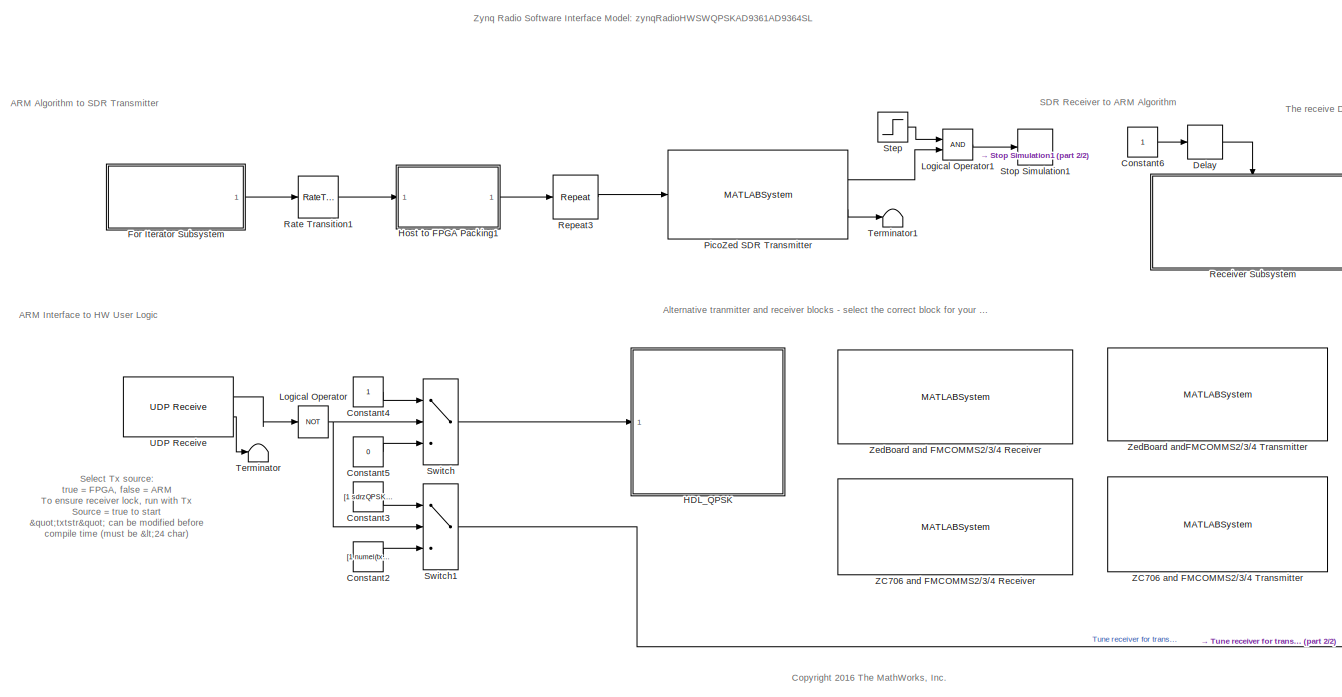
[diagram: root canvas - part 1/2, most of the canvas]
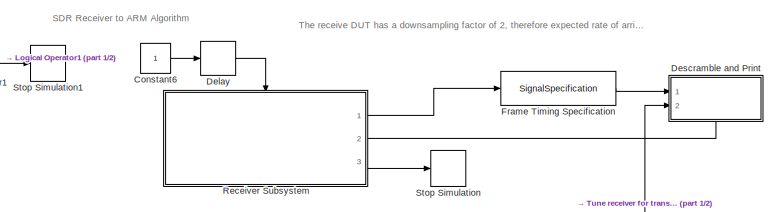
[diagram: root canvas - part 2/2, top right region]
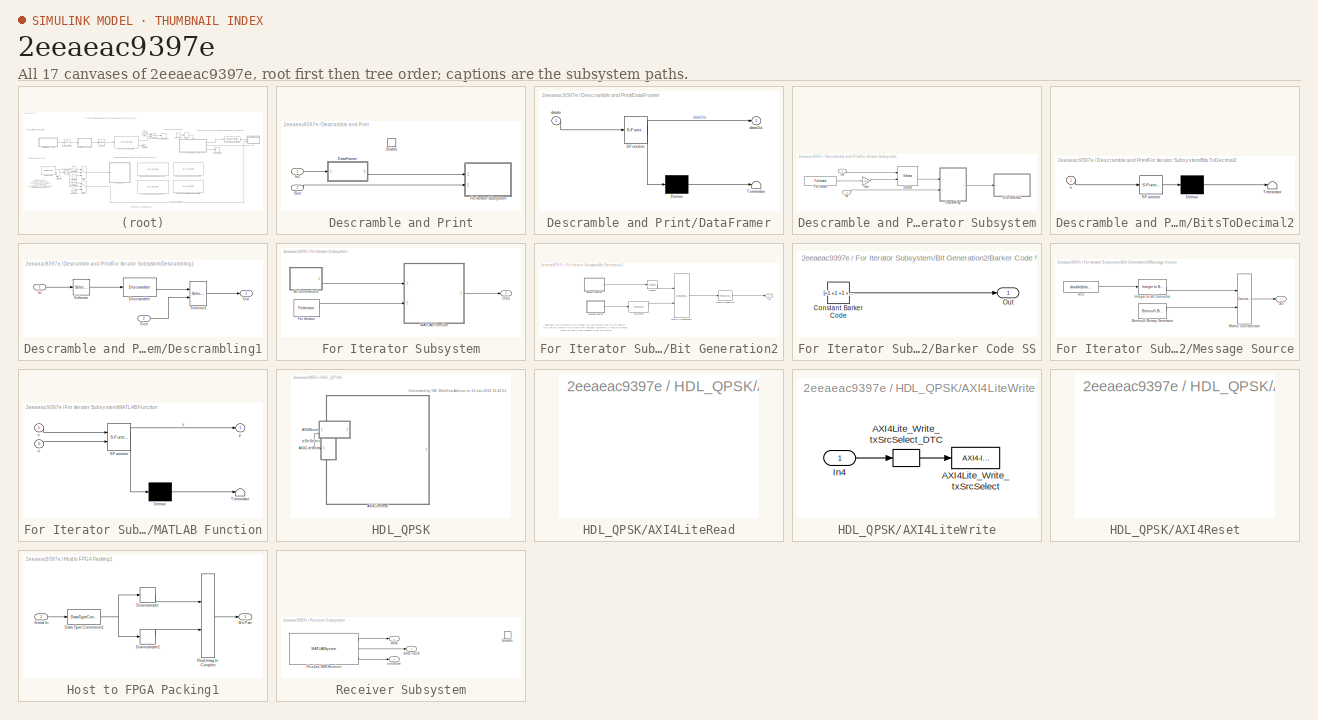
[diagram: thumbnail index - all 17 canvases of the model, root first then tree order]
MODEL slx_2eeaeac9397e
KIND model
CONFIG AbsTol = auto
CONFIG FixedStep = auto
CONFIG InitFcn = sdrzQPSKTxFPGA_params = zynqRadioQPSKTxFPGAAD9361AD9364SL_init;\nsdrzQPSKrxFPGA = zynqRadioQPSKRxFPGAAD9361AD9364SL_init;\n\nif (numel(txtstr) > 24)\n  error('txtstr message must be less than 24 characters');\nend; 
CONFIG MaxStep = auto
CONFIG MinStep = auto
CONFIG PreLoadFcn = % Ensure SDR libraries are added to path\ntempradiodev_ = sdrdev('ZC706 and FMCOMMS2/3/4');\ntempradiodev_.setupSession();\nclear tempradiodev_; % clean up\n\nsdrzQPSKTxFPGA_params = zynqRadioQPSKTxFPGAAD9361AD9364SL_init;\nsdrzQPSKrxFPGA = zynqRadioQPSKRxFPGAAD9361AD9364SL_init;\n\n% ARM Tx message\ntxtstr = '*Zynq HW/SW Co-design*';\n\n% Length of data set for transmit\nDataFrameLength = 10000;
CONFIG RelTol = 1e-3
CONFIG SampleTimeConstraint = Unconstrained
CONFIG Solver = FixedStepDiscrete
CONFIG SolverMode = SingleTasking
CONFIG SolverName = FixedStepDiscrete
CONFIG StartTime = 0.0
CONFIG StopTime = inf
BLOCK [Constant] Constant2
  SampleTime = -1
  Value = [1 numel(txtstr)*7]
BLOCK [Constant] Constant3
  SampleTime = -1
  Value = [1 sdrzQPSKTxFPGA_params.MsgLength]
BLOCK [Constant] Constant4
  OutDataTypeStr = boolean
  SampleTime = -1
BLOCK [Constant] Constant5
  OutDataTypeStr = boolean
  SampleTime = -1
  Value = 0
BLOCK [Constant] Constant6
  SampleTime = 2*(DataFrameLength/2)/sdrzQPSKrxFPGA.Fs
BLOCK [Delay] Delay
  InputPortMap = u0
  Ports = [1, 1]
BLOCK [SubSystem] Descramble and Print
  Ports = [2, 0, 1]
  RequestExecContextInheritance = off
  TreatAsAtomicUnit = on
  Variant = off
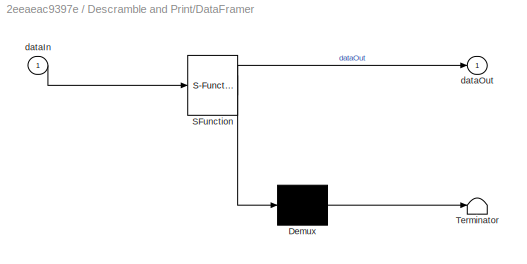
BLOCK [SubSystem] Descramble and Print/DataFramer
  ErrorFcn = Stateflow.Translate.translate
  PermitHierarchicalResolution = ExplicitOnly
  Ports = [1, 1]
  RequestExecContextInheritance = off
  SFBlockType = MATLAB Function
  TreatAsAtomicUnit = on
  Variant = off
BLOCK [Demux] Descramble and Print/DataFramer/ Demux 
  Outputs = 1
  Ports = [1, 1]
BLOCK [S-Function] Descramble and Print/DataFramer/ SFunction 
  EnableBusSupport = on
  FunctionName = sf_sfun
  PortCounts = [1 2]
  Ports = [1, 2]
  SFunctionDeploymentMode = off
  Tag = Stateflow S-Function zynqRadioHWSWQPSKAD9361AD9364SL_UDP_interface 9
BLOCK [Terminator] Descramble and Print/DataFramer/ Terminator 
BLOCK [Inport] Descramble and Print/DataFramer/dataIn
  IconDisplay = Port number
BLOCK [Outport] Descramble and Print/DataFramer/dataOut
  IconDisplay = Port number
BLOCK [EnablePort] Descramble and Print/Enable
  Ports = []
  PropagateVarSize = During execution
BLOCK [SubSystem] Descramble and Print/For Iterator Subsystem
  Ports = [2]
  RequestExecContextInheritance = off
  TreatAsAtomicUnit = on
  Variant = off
BLOCK [SubSystem] Descramble and Print/For Iterator Subsystem/BitsToDecimal2
  ErrorFcn = Stateflow.Translate.translate
  PermitHierarchicalResolution = ExplicitOnly
  Ports = [1]
  RequestExecContextInheritance = off
  SFBlockType = MATLAB Function
  TreatAsAtomicUnit = on
  Variant = off
BLOCK [Demux] Descramble and Print/For Iterator Subsystem/BitsToDecimal2/ Demux 
  Outputs = 1
  Ports = [1, 1]
BLOCK [S-Function] Descramble and Print/For Iterator Subsystem/BitsToDecimal2/ SFunction 
  EnableBusSupport = on
  FunctionName = sf_sfun
  PortCounts = [1 1]
  Ports = [1, 1]
  SFunctionDeploymentMode = off
  Tag = Stateflow S-Function zynqRadioHWSWQPSKAD9361AD9364SL_UDP_interface 2
BLOCK [Terminator] Descramble and Print/For Iterator Subsystem/BitsToDecimal2/ Terminator 
BLOCK [Inport] Descramble and Print/For Iterator Subsystem/BitsToDecimal2/u
  IconDisplay = Port number
BLOCK [SubSystem] Descramble and Print/For Iterator Subsystem/Descrambling1
  Ports = [2, 1]
  RequestExecContextInheritance = off
  Variant = off
BLOCK [Reference] Descramble and Print/For Iterator Subsystem/Descrambling1/Descrambler  REF=commsequence2/Descrambler
  Ports = [1, 1]
  SourceBlock = commsequence2/Descrambler
  SourceType = Descrambler
BLOCK [Inport] Descramble and Print/For Iterator Subsystem/Descrambling1/In
  IconDisplay = Port number
BLOCK [Outport] Descramble and Print/For Iterator Subsystem/Descrambling1/Out
  IconDisplay = Port number
BLOCK [Selector] Descramble and Print/For Iterator Subsystem/Descrambling1/Selector
  IndexOptions = Index vector (dialog)
  Indices = [sdrzQPSKrxFPGA.BarkerLength*log2(sdrzQPSKrxFPGA.M)+1:sdrzQPSKrxFPGA.FrameSize*log2(sdrzQPSKrxFPGA.M)]
  OutputSizes = 1
  Ports = [1, 1]
BLOCK [Selector] Descramble and Print/For Iterator Subsystem/Descrambling1/Selector1
  IndexOptions = Starting and ending indices (port)
  Indices = [1:msglen]
  OutputSizes = 1
  Ports = [2, 1]
BLOCK [Inport] Descramble and Print/For Iterator Subsystem/Descrambling1/Size
  IconDisplay = Port number
  Port = 2
BLOCK [ForIterator] Descramble and Print/For Iterator Subsystem/For Iterator
  IndexMode = Zero-based
  IterationLimit = (DataFrameLength/(sdrzQPSKTxFPGA_params.DataLength + 2*sdrzQPSKTxFPGA_params.BarkerLength))-1
  Ports = [0, 1]
BLOCK [Gain] Descramble and Print/For Iterator Subsystem/Gain
  Gain = sdrzQPSKTxFPGA_params.DataLength + 2*sdrzQPSKTxFPGA_params.BarkerLength
  OutDataTypeStr = int32
  ParamDataTypeStr = Inherit: Inherit via internal rule
  SaturateOnIntegerOverflow = off
BLOCK [Inport] Descramble and Print/For Iterator Subsystem/In1
  IconDisplay = Port number
BLOCK [Inport] Descramble and Print/For Iterator Subsystem/In2
  IconDisplay = Port number
  Port = 2
BLOCK [Selector] Descramble and Print/For Iterator Subsystem/Selector
  IndexMode = Zero-based
  IndexOptions = Starting index (port)
  Indices = [sdrzQPSKrxFPGA.BarkerLength*log2(sdrzQPSKrxFPGA.M)+1:sdrzQPSKrxFPGA.FrameSize*log2(sdrzQPSKrxFPGA.M)]
  OutputSizes = sdrzQPSKTxFPGA_params.DataLength + 2*sdrzQPSKTxFPGA_params.BarkerLength
  Ports = [2, 1]
BLOCK [Inport] Descramble and Print/In1
  IconDisplay = Port number
BLOCK [Inport] Descramble and Print/Size
  IconDisplay = Port number
  Port = 2
BLOCK [SubSystem] For Iterator Subsystem
  Ports = [0, 1]
  RequestExecContextInheritance = off
  TreatAsAtomicUnit = on
  Variant = off
BLOCK [SubSystem] For Iterator Subsystem/Bit Generation2
  Ports = [0, 1]
  RequestExecContextInheritance = off
  Variant = off
BLOCK [SubSystem] For Iterator Subsystem/Bit Generation2/Barker Code SS
  Ports = [0, 1]
  RequestExecContextInheritance = off
  Variant = off
BLOCK [Constant] For Iterator Subsystem/Bit Generation2/Barker Code SS/Constant Barker Code
  OutDataTypeStr = double
  SampleTime = -1
  Value = [+1 +1 +1 +1 +1 -1 -1 +1 +1 -1 +1 -1 +1\n].' > 0  % Bipolar to Unipolar Conversion
  VectorParams1D = off
BLOCK [Outport] For Iterator Subsystem/Bit Generation2/Barker Code SS/Out
  IconDisplay = Port number
BLOCK [FrameConversion] For Iterator Subsystem/Bit Generation2/Frame Conversion
  InheritSamplingMode = off
  OutFrame = Sample-based
  Ports = [1, 1]
BLOCK [Concatenate] For Iterator Subsystem/Bit Generation2/Matrix Concatenate
  Mode = Multidimensional array
  Ports = [2, 1]
BLOCK [SubSystem] For Iterator Subsystem/Bit Generation2/Message Source
  Ports = [0, 1]
  RequestExecContextInheritance = off
  Variant = off
BLOCK [Reference] For Iterator Subsystem/Bit Generation2/Message Source/Bernoulli Binary Generator  REF=commrandsrc2/Bernoulli Binary
Generator
  Ports = [0, 1]
  SourceBlock = commrandsrc2/Bernoulli Binary\nGenerator
  SourceType = Bernoulli Binary Generator
BLOCK [Reference] For Iterator Subsystem/Bit Generation2/Message Source/Integer to Bit Converter  REF=commutil2/Integer to Bit
Converter
  Ports = [1, 1]
  SourceBlock = commutil2/Integer to Bit\nConverter
  SourceType = Integer to Bit Converter
BLOCK [Concatenate] For Iterator Subsystem/Bit Generation2/Message Source/Matrix Concatenate
  Mode = Multidimensional array
  Ports = [2, 1]
BLOCK [Outport] For Iterator Subsystem/Bit Generation2/Message Source/Out
  IconDisplay = Port number
BLOCK [Constant] For Iterator Subsystem/Bit Generation2/Message Source/text
  SampleTime = -1
  Value = double(txtstr)
BLOCK [Outport] For Iterator Subsystem/Bit Generation2/Out
  IconDisplay = Port number
BLOCK [Reference] For Iterator Subsystem/Bit Generation2/Repeat  REF=dspsigops/Repeat
  Ports = [1, 1]
  SourceBlock = dspsigops/Repeat
  SourceType = Repeat
  UserDataPersistent = on
BLOCK [Reference] For Iterator Subsystem/Bit Generation2/Scrambler  REF=commsequence2/Scrambler
  Ports = [1, 1]
  SourceBlock = commsequence2/Scrambler
  SourceType = Scrambler
BLOCK [ForIterator] For Iterator Subsystem/For Iterator
  IndexMode = Zero-based
  IterationLimit = (DataFrameLength/(sdrzQPSKTxFPGA_params.DataLength + 2*sdrzQPSKTxFPGA_params.BarkerLength))-1
  Ports = [0, 1]
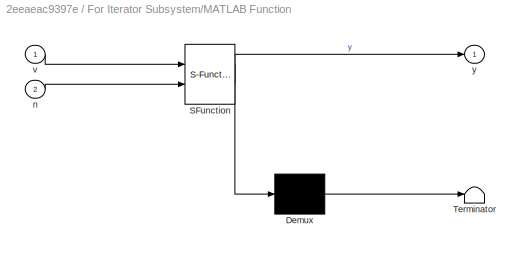
BLOCK [SubSystem] For Iterator Subsystem/MATLAB Function
  ErrorFcn = Stateflow.Translate.translate
  PermitHierarchicalResolution = ExplicitOnly
  Ports = [2, 1]
  RequestExecContextInheritance = off
  SFBlockType = MATLAB Function
  TreatAsAtomicUnit = on
  Variant = off
BLOCK [Demux] For Iterator Subsystem/MATLAB Function/ Demux 
  Outputs = 1
  Ports = [1, 1]
BLOCK [S-Function] For Iterator Subsystem/MATLAB Function/ SFunction 
  EnableBusSupport = on
  FunctionName = sf_sfun
  PortCounts = [2 2]
  Ports = [2, 2]
  SFunctionDeploymentMode = off
  Tag = Stateflow S-Function zynqRadioHWSWQPSKAD9361AD9364SL_UDP_interface 4
BLOCK [Terminator] For Iterator Subsystem/MATLAB Function/ Terminator 
BLOCK [Inport] For Iterator Subsystem/MATLAB Function/n
  IconDisplay = Port number
  Port = 2
BLOCK [Inport] For Iterator Subsystem/MATLAB Function/v
  IconDisplay = Port number
BLOCK [Outport] For Iterator Subsystem/MATLAB Function/y
  IconDisplay = Port number
BLOCK [Outport] For Iterator Subsystem/Out1
  IconDisplay = Port number
BLOCK [SignalSpecification] Frame Timing Specification
  SampleTime = 2*(DataFrameLength/2)/sdrzQPSKrxFPGA.Fs
BLOCK [SubSystem] HDL_QPSK
  Ports = [1]
  RequestExecContextInheritance = off
  TreatAsAtomicUnit = on
  Variant = off
BLOCK [SubSystem] HDL_QPSK/AXI4LiteRead
  Ports = []
  Priority = 10
  RequestExecContextInheritance = off
  Variant = off
BLOCK [SubSystem] HDL_QPSK/AXI4LiteWrite
  Ports = [1]
  Priority = 1
  RequestExecContextInheritance = off
  Variant = off
BLOCK [Reference] HDL_QPSK/AXI4LiteWrite/AXI4Lite_Write_txSrcSelect  REF=axiinterfacelib/AXI4-Interface Write
  Ports = [1]
  Priority = 7
  SourceBlock = axiinterfacelib/AXI4-Interface Write
  SourceType = AXI4-Interface Write
BLOCK [DataTypeConversion] HDL_QPSK/AXI4LiteWrite/AXI4Lite_Write_txSrcSelect_DTC
  ConvertRealWorld = Stored Integer (SI)
  OutDataTypeStr = uint32
  RndMeth = Floor
  SaturateOnIntegerOverflow = off
BLOCK [Inport] HDL_QPSK/AXI4LiteWrite/In4
  IconDisplay = Port number
BLOCK [SubSystem] HDL_QPSK/AXI4Reset
  CopyFcn = cccopyfcn(gcb)
  OpenFcn = ccopenfcn('System Initialize Function')
  Ports = []
  RequestExecContextInheritance = off
  Variant = off
BLOCK [Inport] HDL_QPSK/txSrcSelect
  IconDisplay = Port number
BLOCK [SubSystem] Host to FPGA Packing1
  Ports = [1, 1]
  RequestExecContextInheritance = off
  Variant = off
BLOCK [Outport] Host to FPGA Packing1/Bit Pair
  IconDisplay = Port number
BLOCK [DataTypeConversion] Host to FPGA Packing1/Data Type Conversion1
  OutDataTypeStr = int16
  RndMeth = Floor
  SaturateOnIntegerOverflow = off
BLOCK [DownSample] Host to FPGA Packing1/Downsample
  RateOptions = Allow multirate processing
  UserDataPersistent = on
BLOCK [DownSample] Host to FPGA Packing1/Downsample1
  RateOptions = Allow multirate processing
  UserDataPersistent = on
  phase = 1
BLOCK [RealImagToComplex] Host to FPGA Packing1/Real-Imag to Complex
  Ports = [2, 1]
BLOCK [Inport] Host to FPGA Packing1/Serial In
  IconDisplay = Port number
BLOCK [Logic] Logical Operator
  AllPortsSameDT = off
  Operator = NOT
  OutDataTypeStr = boolean
  Ports = [1, 1]
BLOCK [Logic] Logical Operator1
  AllPortsSameDT = off
  OutDataTypeStr = boolean
  Ports = [2, 1]
BLOCK [MATLABSystem] PicoZed SDR Transmitter
  AnalogFilterCutoff = [ 2560000; 2560000 ]
  BasebandSampleRate = sdrzQPSKrxFPGA.Fs
  BypassUserLogic = off
  CenterFrequency = 2400000000
  CenterFrequencySource = Dialog
  ChannelMapping = 1
  DDSFrequency = [ 1000000, 1000000; 1000000, 1000000 ]
  DDSPhase = [ 0, 0; 0, 0 ]
  DDSScale = [ 250000, 250000; 250000, 250000 ]
  DMATimeoutValue = 200e-6
  DataSourceSelect = Host
  EnableBurstMode = off
  EnableTxPrimingMode = on
  FIRCoefficientSize = [ 128; 128 ]
  FIRCoefficients = [ 111, -87, 147, -127, -18, -286, -312, -555, -601, -722, -642, -555, -303, -66, 221, 393, 488, 403, 219, -74, -343, -550, -582, -450, -146, 221, 569, 759, 735, 463, 20, -487, -885, -1048, -883, -418, 243, 897, 1340, 1394, 1002, 228, -715, -1549, -1980, -1819, -1028, 217, 1583, 2635, 2980, 2377, 853, -1275, -3435, -4926, -5080, -3454, 40, 5065, 10903, 16581, 21085, 23573, 23573, 21085, 16581, 1090...<+1096ch>  <repeated x4 — deduplicated; at blocks: PicoZed SDR Transmitter, PicoZed SDR Receiver, ZedBoard and FMCOMMS2/3/4 Receiver, ZedBoard andFMCOMMS2/3/4 Transmitter>
  FIRDecimInterpFactor = [ 4; 4 ]
  FIRGain = [ 0; -12 ]
  FilterDesignTypeForRx = DefaultFilterFromOther
  FilterDesignTypeForTx = DefaultFilter
  FilterPathRates = [ 737280000, 184320000, 61440000, 30720000, 15360000, 3840000; 737280000, 184320000, 61440000, 30720000, 15360000, 3840000 ]
  Gain = -10
  GainSource = Dialog
  IPAddress = 192.168.3.2
  InitFcn = sdr.internal.registerBlocks(gcb, 'xpicozedsdr');
  LostSamplesOutputPort = on
  MaskDisplay = disp(['PicoZed SDR' char(10) 'ARM-FPGA Interface']);\nport_label('input',1,'data');\nport_label('output',1,'underflow');\nport_label('output',2,'overflow');
  MaskType = comm.internal.SDRTxPicoZedSDRSL
  NumFramesInBurst = 20
  OverflowOutputPort = off
  Ports = [1, 2]
  Priority = 0
  ShowAdvancedProperties = on
  ShowInternalProperties = off
  SimulateUsing = Interpreted execution
  System = comm.internal.SDRTxPicoZedSDRSL
  blockMode = Codegen
  ctrlUDPPort = -1
  dataUDPPort = -1
  sdrExecutionMode = HW
  subDeviceList = zynqTransmitter
BLOCK [RateTransition] Rate Transition1
  OutPortSampleTime = sdrzQPSKTxFPGA_params.FrameTime*(DataFrameLength/(sdrzQPSKTxFPGA_params.DataLength + 2*sdrzQPSKTxFPGA_params.BarkerLength))
BLOCK [SubSystem] Receiver Subsystem
  Ports = [0, 3, 1]
  RequestExecContextInheritance = off
  Variant = off
BLOCK [EnablePort] Receiver Subsystem/Enable
  Ports = []
BLOCK [MATLABSystem] Receiver Subsystem/PicoZed SDR Receiver
  AnalogFilterCutoff = [ 2560000; 2560000 ]
  BISTChannelMask = 0
  BISTLoopbackConfig = No Loopback
  BISTPRBSMode = PRBS Disable
  BISTToneFrequency = F/32
  BISTToneLevel = -6
  BISTToneMode = Tone Disable
  BasebandSampleRate = sdrzQPSKrxFPGA.Fs
  BypassUserLogic = off
  CenterFrequency = 2400000000
  CenterFrequencySource = Dialog
  ChannelMapping = 1
  DMATimeoutValue = 200e-6
  DataIsComplex = on
  EnableBasebandDCTracking = on
  EnableBurstMode = off
  EnableQuadratureTracking = on
  EnableRFDCTracking = on
  FIRCoefficientSize = [ 128; 128 ]
  FIRDecimInterpFactor = [ 4; 4 ]
  FIRGain = [ 0; -12 ]
  FilterDesignTypeForRx = DefaultFilter
  FilterDesignTypeForTx = DefaultFilterFromOther
  FilterPathRates = [ 737280000, 184320000, 61440000, 30720000, 15360000, 3840000; 737280000, 184320000, 61440000, 30720000, 15360000, 3840000 ]
  Gain = 1
  GainSource = AGC Fast Attack
  IPAddress = 192.168.3.2
  InitFcn = sdr.internal.registerBlocks(gcb, 'xpicozedsdr');
  LostSamplesOutputPort = on
  MaskDisplay = disp(['PicoZed SDR' char(10) 'ARM-FPGA Interface']);\nport_label('output',1,'data');\nport_label('output',2,'data valid');\nport_label('output',3,'overflow');
  MaskType = comm.internal.SDRRxPicoZedSDRSL
  NumFramesInBurst = 20
  OutputDataType = int16
  Ports = [0, 3]
  RSSIOutputPort = off
  SamplesPerFrame = DataFrameLength/2
  ShowAdvancedProperties = on
  ShowInternalProperties = off
  SimulateUsing = Interpreted execution
  SourceConfiguration1 = 1023
  SourceSelect = RF data
  System = comm.internal.SDRRxPicoZedSDRSL
  blockMode = Codegen
  ctrlUDPPort = -1
  dataUDPPort = -1
  sdrExecutionMode = HW
  subDeviceList = zynqReceiver
BLOCK [Outport] Receiver Subsystem/data
  IconDisplay = Port number
BLOCK [Outport] Receiver Subsystem/data valid
  IconDisplay = Port number
  Port = 2
BLOCK [Outport] Receiver Subsystem/overflow
  IconDisplay = Port number
  Port = 3
BLOCK [Reference] Repeat3  REF=dspsigops/Repeat
  Ports = [1, 1]
  SourceBlock = dspsigops/Repeat
  SourceType = Repeat
  UserDataPersistent = on
BLOCK [Step] Step
  SampleTime = DataFrameLength/sdrzQPSKrxFPGA.Fs
  Time = 10*DataFrameLength/sdrzQPSKrxFPGA.Fs
BLOCK [Stop] Stop Simulation
BLOCK [Stop] Stop Simulation1
BLOCK [Switch] Switch
  Criteria = u2 ~= 0
  InputSameDT = off
  SaturateOnIntegerOverflow = off
BLOCK [Switch] Switch1
  Criteria = u2 ~= 0
  InputSameDT = off
  SaturateOnIntegerOverflow = off
BLOCK [Terminator] Terminator
BLOCK [Terminator] Terminator1
BLOCK [Reference] UDP Receive  REF=zynqlib/UDP Receive
  Ports = [0, 2]
  SourceBlock = zynqlib/UDP Receive
  SourceType = UDP Receive
BLOCK [MATLABSystem] ZC706 and FMCOMMS2//3//4 Receiver
  AnalogFilterCutoff = [3152524;3161715]
  BISTChannelMask = 0
  BISTLoopbackConfig = No Loopback
  BISTPRBSMode = PRBS Disable
  BISTToneFrequency = F/32
  BISTToneLevel = -6
  BISTToneMode = Tone Disable
  BasebandSampleRate = sdrzQPSKrxFPGA.Fs
  BypassUserLogic = off
  CenterFrequency = 2400000000
  CenterFrequencySource = Dialog
  ChannelMapping = 1
  Commented = on
  DMATimeoutValue = 200e-6
  DataIsComplex = on
  EnableBasebandDCTracking = on
  EnableBurstMode = off
  EnableQuadratureTracking = on
  EnableRFDCTracking = on
  FIRCoefficientSize = [128;128]
  FIRCoefficients = [55 -54 42 -126 -123 -317 -399 -581 -646 -711 -634 -507 -263 -10 255 424 492 401 201 -84 -352 -540 -566 -423 -126 234 562 738 701 429 -5 -490 -866 -1007 -834 -372 266 891 1301 1334 936 178 -733 -1524 -1917 -1731 -944 274 1590 2585 2881 2255 741 -1344 -3435 -4850 -4942 -3285 197 5169 10923 16509 20932 23375 23375 20932 16509 10923 5169 197 -3285 -4942 -4850 -3435 -1344 741 2255 2881 2585 1590 274 -...<+833ch>
  FIRDecimInterpFactor = [4;4]
  FIRGain = [0;-12]
  FilterDesignTypeForRx = DefaultFilter
  FilterDesignTypeForTx = DefaultFilterFromOther
  FilterPathRates = [983040000 122880000 61440000 30720000 15360000 3840000;983040000 122880000 61440000 30720000 15360000 3840000]
  Gain = 1
  GainSource = AGC Slow Attack
  IPAddress = 192.168.3.2
  InitFcn = sdr.internal.registerBlocks(gcb, 'xzc706afmc3');
  LostSamplesOutputPort = on
  MaskDisplay = disp(['ZC706 and FMCOMMS2/3/4' char(10) 'ARM-FPGA Interface']);\nport_label('output',1,'data');\nport_label('output',2,'data valid');\nport_label('output',3,'overflow');
  MaskType = comm.internal.SDRRxZC706FMC234SL
  NumFramesInBurst = 20
  OutputDataType = int16
  Ports = [0, 3]
  Priority = 0
  RSSIOutputPort = off
  SamplesPerFrame = DataFrameLength/2
  ShowAdvancedProperties = on
  ShowInternalProperties = off
  SimulateUsing = Interpreted execution
  SourceConfiguration1 = 1023
  SourceSelect = RF data
  System = comm.internal.SDRRxZC706FMC234SL
  blockMode = Codegen
  ctrlUDPPort = -1
  dataUDPPort = -1
  sdrExecutionMode = HW
  subDeviceList = zynqReceiver
BLOCK [MATLABSystem] ZC706 and FMCOMMS2//3//4 Transmitter
  AnalogFilterCutoff = [3152524;3161715]
  BasebandSampleRate = sdrzQPSKrxFPGA.Fs
  BypassUserLogic = off
  CenterFrequency = 2400000000
  CenterFrequencySource = Dialog
  ChannelMapping = 1
  Commented = on
  DDSFrequency = 1000000*ones([2 2])
  DDSPhase = [0 0;0 0]
  DDSScale = 250000*ones([2 2])
  DMATimeoutValue = 200e-6
  DataSourceSelect = Host
  EnableBurstMode = off
  EnableTxPrimingMode = on
  FIRCoefficientSize = [128;128]
  FIRCoefficients = [55 -54 42 -126 -123 -317 -399 -581 -646 -711 -634 -507 -263 -10 255 424 492 401 201 -84 -352 -540 -566 -423 -126 234 562 738 701 429 -5 -490 -866 -1007 -834 -372 266 891 1301 1334 936 178 -733 -1524 -1917 -1731 -944 274 1590 2585 2881 2255 741 -1344 -3435 -4850 -4942 -3285 197 5169 10923 16509 20932 23375 23375 20932 16509 10923 5169 197 -3285 -4942 -4850 -3435 -1344 741 2255 2881 2585 1590 274 -...<+833ch>
  FIRDecimInterpFactor = [4;4]
  FIRGain = [0;-12]
  FilterDesignTypeForRx = DefaultFilterFromOther
  FilterDesignTypeForTx = DefaultFilter
  FilterPathRates = [983040000 122880000 61440000 30720000 15360000 3840000;983040000 122880000 61440000 30720000 15360000 3840000]
  Gain = -10
  GainSource = Dialog
  IPAddress = 192.168.3.2
  InitFcn = sdr.internal.registerBlocks(gcb, 'xzc706afmc3');
  LostSamplesOutputPort = on
  MaskDisplay = disp(['ZC706 and FMCOMMS2/3/4' char(10) 'ARM-FPGA Interface']);\nport_label('input',1,'data');\nport_label('output',1,'underflow');\nport_label('output',2,'overflow');
  MaskType = comm.internal.SDRTxZC706FMC234SL
  NumFramesInBurst = 20
  OverflowOutputPort = off
  Ports = [1, 2]
  ShowAdvancedProperties = on
  ShowInternalProperties = off
  SimulateUsing = Interpreted execution
  System = comm.internal.SDRTxZC706FMC234SL
  blockMode = Codegen
  ctrlUDPPort = -1
  dataUDPPort = -1
  sdrExecutionMode = HW
  subDeviceList = zynqTransmitter
BLOCK [MATLABSystem] ZedBoard and FMCOMMS2//3//4 Receiver
  AnalogFilterCutoff = [ 2560000; 2560000 ]
  BISTChannelMask = 0
  BISTLoopbackConfig = No Loopback
  BISTPRBSMode = PRBS Disable
  BISTToneFrequency = F/32
  BISTToneLevel = -6
  BISTToneMode = Tone Disable
  BasebandSampleRate = sdrzQPSKrxFPGA.Fs
  BypassUserLogic = off
  CenterFrequency = 2400000000
  CenterFrequencySource = Dialog
  ChannelMapping = 1
  Commented = on
  DMATimeoutValue = 200e-6
  DataIsComplex = on
  EnableBasebandDCTracking = on
  EnableBurstMode = off
  EnableQuadratureTracking = on
  EnableRFDCTracking = on
  FIRCoefficientSize = [ 128; 128 ]
  FIRDecimInterpFactor = [ 4; 4 ]
  FIRGain = [ 0; -12 ]
  FilterDesignTypeForRx = DefaultFilter
  FilterDesignTypeForTx = DefaultFilterFromOther
  FilterPathRates = [ 737280000, 184320000, 61440000, 30720000, 15360000, 3840000; 737280000, 184320000, 61440000, 30720000, 15360000, 3840000 ]
  Gain = 1
  GainSource = AGC Slow Attack
  IPAddress = 192.168.3.2
  InitFcn = sdr.internal.registerBlocks(gcb, 'xzedboardafmc3');
  LostSamplesOutputPort = on
  MaskDisplay = disp(['ZedBoard and FMCOMMS2/3/4' char(10) 'ARM-FPGA Interface']);\nport_label('output',1,'data');\nport_label('output',2,'data valid');\nport_label('output',3,'overflow');
  MaskType = comm.internal.SDRRxZedBoardFMC234SL
  NumFramesInBurst = 20
  OutputDataType = int16
  Ports = [0, 3]
  Priority = 0
  RSSIOutputPort = off
  SamplesPerFrame = DataFrameLength/2
  ShowAdvancedProperties = on
  ShowInternalProperties = off
  SimulateUsing = Interpreted execution
  SourceConfiguration1 = 1023
  SourceSelect = RF data
  System = comm.internal.SDRRxZedBoardFMC234SL
  blockMode = Codegen
  ctrlUDPPort = -1
  dataUDPPort = -1
  sdrExecutionMode = HW
  subDeviceList = zynqReceiver
BLOCK [MATLABSystem] ZedBoard andFMCOMMS2//3//4 Transmitter
  AnalogFilterCutoff = [ 2560000; 2560000 ]
  BasebandSampleRate = sdrzQPSKrxFPGA.Fs
  BypassUserLogic = off
  CenterFrequency = 2400000000
  CenterFrequencySource = Dialog
  ChannelMapping = 1
  Commented = on
  DDSFrequency = [ 1000000, 1000000; 1000000, 1000000 ]
  DDSPhase = [ 0, 0; 0, 0 ]
  DDSScale = [ 250000, 250000; 250000, 250000 ]
  DMATimeoutValue = 200e-6
  DataSourceSelect = Host
  EnableBurstMode = off
  EnableTxPrimingMode = on
  FIRCoefficientSize = [ 128; 128 ]
  FIRDecimInterpFactor = [ 4; 4 ]
  FIRGain = [ 0; -12 ]
  FilterDesignTypeForRx = DefaultFilterFromOther
  FilterDesignTypeForTx = DefaultFilter
  FilterPathRates = [ 737280000, 184320000, 61440000, 30720000, 15360000, 3840000; 737280000, 184320000, 61440000, 30720000, 15360000, 3840000 ]
  Gain = -10
  GainSource = Dialog
  IPAddress = 192.168.3.2
  InitFcn = sdr.internal.registerBlocks(gcb, 'xzedboardafmc3');
  LostSamplesOutputPort = on
  MaskDisplay = disp(['ZedBoard and FMCOMMS2/3/4' char(10) 'ARM-FPGA Interface']);\nport_label('input',1,'data');\nport_label('output',1,'underflow');\nport_label('output',2,'overflow');
  MaskType = comm.internal.SDRTxZedBoardFMC234SL
  NumFramesInBurst = 20
  OverflowOutputPort = off
  Ports = [1, 2]
  ShowAdvancedProperties = on
  ShowInternalProperties = off
  SimulateUsing = Interpreted execution
  System = comm.internal.SDRTxZedBoardFMC234SL
  blockMode = Codegen
  ctrlUDPPort = -1
  dataUDPPort = -1
  sdrExecutionMode = HW
  subDeviceList = zynqTransmitter
ANNOTATION (root): Select Tx source: true = FPGA, false = ARM To ensure receiver lock, run with Tx Source = true to start "txtstr" can be modified before compile time (must be <24 char)
ANNOTATION (root): The receive DUT has a downsampling factor of 2, therefore expected rate of arrival of frames at the ARM is 2*SamplesPerFrame/BasebandSampleRate .
ANNOTATION (root): ARM Algorithm to SDR Transmitter
ANNOTATION (root): ARM Interface to HW User Logic
ANNOTATION (root): Alternative tranmitter and receiver blocks - select the correct block for your hardware
ANNOTATION (root): <copyright redacted>
ANNOTATION (root): SDR Receiver to ARM Algorithm
ANNOTATION (root): Zynq Radio Software Interface Model: zynqRadioHWSWQPSKAD9361AD9364SL
ANNOTATION For Iterator Subsystem/Bit Generation2: Each data frame contains 26 bits header (For Sync Purpose) and 174 bits data bits, first 105 bits contain "Hello world ###" message. Scrambler is there to improve data transition density and frequency offset estimation.
ANNOTATION HDL_QPSK: Generated by HDL Workflow Advisor on 22-Jan-2016 16:42:51
LINE Constant2:1 -> Switch1:3
LINE Constant3:1 -> Switch1:1
LINE Constant4:1 -> Switch:1
LINE Constant5:1 -> Switch:3
LINE Constant6:1 -> Delay:1
LINE Delay:1 -> Receiver Subsystem:enable
LINE Descramble and Print/DataFramer:1 -> Descramble and Print/For Iterator Subsystem:1
LINE Descramble and Print/For Iterator Subsystem/Descrambling1/Descrambler:1 -> Descramble and Print/For Iterator Subsystem/Descrambling1/Selector1:1
LINE Descramble and Print/For Iterator Subsystem/Descrambling1/In:1 -> Descramble and Print/For Iterator Subsystem/Descrambling1/Selector:1
LINE Descramble and Print/For Iterator Subsystem/Descrambling1/Selector1:1 -> Descramble and Print/For Iterator Subsystem/Descrambling1/Out:1
LINE Descramble and Print/For Iterator Subsystem/Descrambling1/Selector:1 -> Descramble and Print/For Iterator Subsystem/Descrambling1/Descrambler:1
LINE Descramble and Print/For Iterator Subsystem/Descrambling1/Size:1 -> Descramble and Print/For Iterator Subsystem/Descrambling1/Selector1:2
LINE Descramble and Print/For Iterator Subsystem/Descrambling1:1 -> Descramble and Print/For Iterator Subsystem/BitsToDecimal2:1
LINE Descramble and Print/For Iterator Subsystem/For Iterator:1 -> Descramble and Print/For Iterator Subsystem/Gain:1
LINE Descramble and Print/For Iterator Subsystem/Gain:1 -> Descramble and Print/For Iterator Subsystem/Selector:2
LINE Descramble and Print/For Iterator Subsystem/In1:1 -> Descramble and Print/For Iterator Subsystem/Selector:1
LINE Descramble and Print/For Iterator Subsystem/In2:1 -> Descramble and Print/For Iterator Subsystem/Descrambling1:2
LINE Descramble and Print/For Iterator Subsystem/Selector:1 -> Descramble and Print/For Iterator Subsystem/Descrambling1:1
LINE Descramble and Print/In1:1 -> Descramble and Print/DataFramer:1
LINE Descramble and Print/Size:1 -> Descramble and Print/For Iterator Subsystem:2
LINE For Iterator Subsystem/Bit Generation2/Barker Code SS/Constant Barker Code:1 -> For Iterator Subsystem/Bit Generation2/Barker Code SS/Out:1
LINE For Iterator Subsystem/Bit Generation2/Barker Code SS:1 -> For Iterator Subsystem/Bit Generation2/Repeat:1
LINE For Iterator Subsystem/Bit Generation2/Frame Conversion:1 -> For Iterator Subsystem/Bit Generation2/Out:1
LINE For Iterator Subsystem/Bit Generation2/Matrix Concatenate:1 -> For Iterator Subsystem/Bit Generation2/Frame Conversion:1
LINE For Iterator Subsystem/Bit Generation2/Message Source/Bernoulli Binary Generator:1 -> For Iterator Subsystem/Bit Generation2/Message Source/Matrix Concatenate:2
LINE For Iterator Subsystem/Bit Generation2/Message Source/Integer to Bit Converter:1 -> For Iterator Subsystem/Bit Generation2/Message Source/Matrix Concatenate:1
LINE For Iterator Subsystem/Bit Generation2/Message Source/Matrix Concatenate:1 -> For Iterator Subsystem/Bit Generation2/Message Source/Out:1
LINE For Iterator Subsystem/Bit Generation2/Message Source/text:1 -> For Iterator Subsystem/Bit Generation2/Message Source/Integer to Bit Converter:1
LINE For Iterator Subsystem/Bit Generation2/Message Source:1 -> For Iterator Subsystem/Bit Generation2/Scrambler:1
LINE For Iterator Subsystem/Bit Generation2/Repeat:1 -> For Iterator Subsystem/Bit Generation2/Matrix Concatenate:1
LINE For Iterator Subsystem/Bit Generation2/Scrambler:1 -> For Iterator Subsystem/Bit Generation2/Matrix Concatenate:2
LINE For Iterator Subsystem/Bit Generation2:1 -> For Iterator Subsystem/MATLAB Function:1
LINE For Iterator Subsystem/For Iterator:1 -> For Iterator Subsystem/MATLAB Function:2
LINE For Iterator Subsystem/MATLAB Function:1 -> For Iterator Subsystem/Out1:1
LINE For Iterator Subsystem:1 -> Rate Transition1:1
LINE Frame Timing Specification:1 -> Descramble and Print:1
LINE HDL_QPSK/AXI4LiteWrite/AXI4Lite_Write_txSrcSelect_DTC:1 -> HDL_QPSK/AXI4LiteWrite/AXI4Lite_Write_txSrcSelect:1
LINE HDL_QPSK/AXI4LiteWrite/In4:1 -> HDL_QPSK/AXI4LiteWrite/AXI4Lite_Write_txSrcSelect_DTC:1
LINE HDL_QPSK/txSrcSelect:1 -> HDL_QPSK/AXI4LiteWrite:1
NET Host to FPGA Packing1/Data Type Conversion1:1 -> Host to FPGA Packing1/Downsample1:1, Host to FPGA Packing1/Downsample:1
LINE Host to FPGA Packing1/Downsample1:1 -> Host to FPGA Packing1/Real-Imag to Complex:2
LINE Host to FPGA Packing1/Downsample:1 -> Host to FPGA Packing1/Real-Imag to Complex:1
LINE Host to FPGA Packing1/Real-Imag to Complex:1 -> Host to FPGA Packing1/Bit Pair:1
LINE Host to FPGA Packing1/Serial In:1 -> Host to FPGA Packing1/Data Type Conversion1:1
LINE Host to FPGA Packing1:1 -> Repeat3:1
LINE Logical Operator1:1 -> Stop Simulation1:1
NET Logical Operator:1 -> Switch1:2, Switch:2
LINE PicoZed SDR Transmitter:1 -> Logical Operator1:2
LINE PicoZed SDR Transmitter:2 -> Terminator1:1
LINE Rate Transition1:1 -> Host to FPGA Packing1:1
LINE Receiver Subsystem/PicoZed SDR Receiver:1 -> Receiver Subsystem/data:1
LINE Receiver Subsystem/PicoZed SDR Receiver:2 -> Receiver Subsystem/data valid:1
LINE Receiver Subsystem/PicoZed SDR Receiver:3 -> Receiver Subsystem/overflow:1
LINE Receiver Subsystem:1 -> Frame Timing Specification:1
LINE Receiver Subsystem:2 -> Descramble and Print:enable
LINE Receiver Subsystem:3 -> Stop Simulation:1
LINE Repeat3:1 -> PicoZed SDR Transmitter:1
LINE Step:1 -> Logical Operator1:1
LINE Switch1:1 -> Descramble and Print:2
LINE Switch:1 -> HDL_QPSK:1
LINE UDP Receive:1 -> Logical Operator:1
LINE UDP Receive:2 -> Terminator:1
note: NET lines group one-source signal fan-out (src -> all destinations, sorted); 1:1 wires keep LINE
CHART Descramble and Print/For Iterator
Subsystem/BitsToDecimal2 states=1 transitions=1
  STATE_LABEL 'eML_blk_kernel()'
  STATE_LABEL 'SCRIPT:\nfunction BitsToASCII(u)\n%#codegen\n% Convert bits to ASCII message.\n% Convert binary-valued column vector to 7-bit decimal values.\nw = [64 32 16 8 4 2 1]; % binary digit weighting\nNbits = numel(u);\nNy = Nbits/7;\ny = zeros(1,Ny);\nfor i = 0:Ny-1\n    y(i+1) = w*u(7*i+(1:7));\nend\n\n% replace the non-printable characters with "^" char(94) \n% to indicate an error \ny(y > 126)= 94; \ny(y < 32) = 94;\n...<+66ch>'
CHART For Iterator
Subsystem/MATLAB Function states=1 transitions=1
  STATE_LABEL 'eML_blk_kernel()'
  STATE_LABEL 'SCRIPT:\nfunction y = fcn(v,n)\n%#codegen\npersistent output;\n\n% Length of generated data set, this must match the DataFrameLength\n% associated with the rest of the model\nDataFrameLength = 10000;\n\n% Message length (sdrzQPSKTxFPGA_params.DataLength + 2*sdrzQPSKTxFPGA_params.BarkerLength)\nMessageLength = 200;\n\nif isempty(output)\n    output = zeros(DataFrameLength,1);\nend\nstartIdx = n*MessageLength+1;\ne...<+74ch>'
CHART Descramble and Print/DataFramer states=1 transitions=1
  STATE_LABEL 'eML_blk_kernel()'
  STATE_LABEL "SCRIPT:\nfunction dataOut = fcn(dataIn)\n%#codegen\n\n\nnData = 2*numel(dataIn);\n\nb1 = real(dataIn);\nb2 = imag(dataIn);\n\ndataOut = logical(reshape([b1,b2]',nData,1));   \n"
